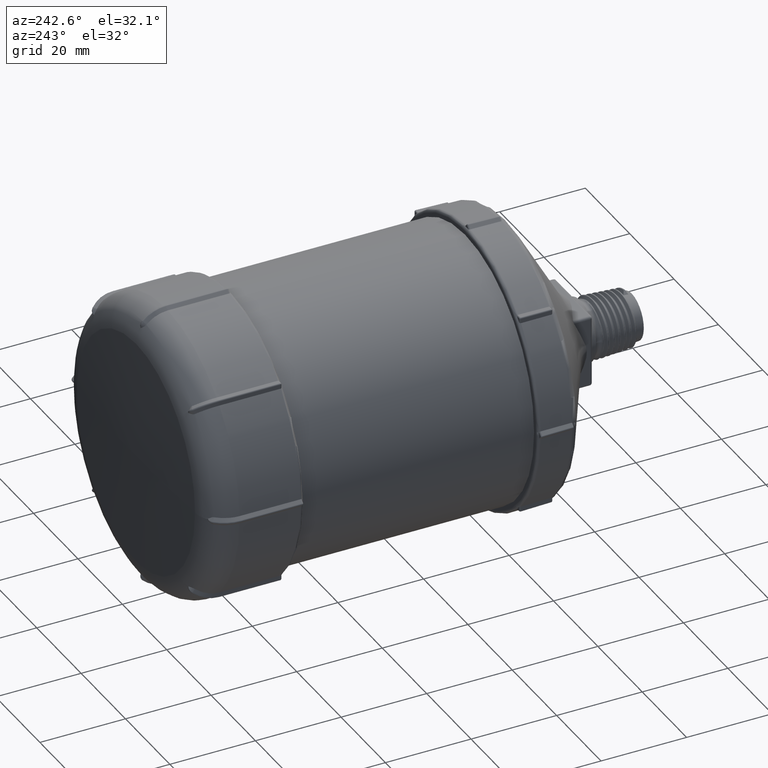
[diagram: clean part render]
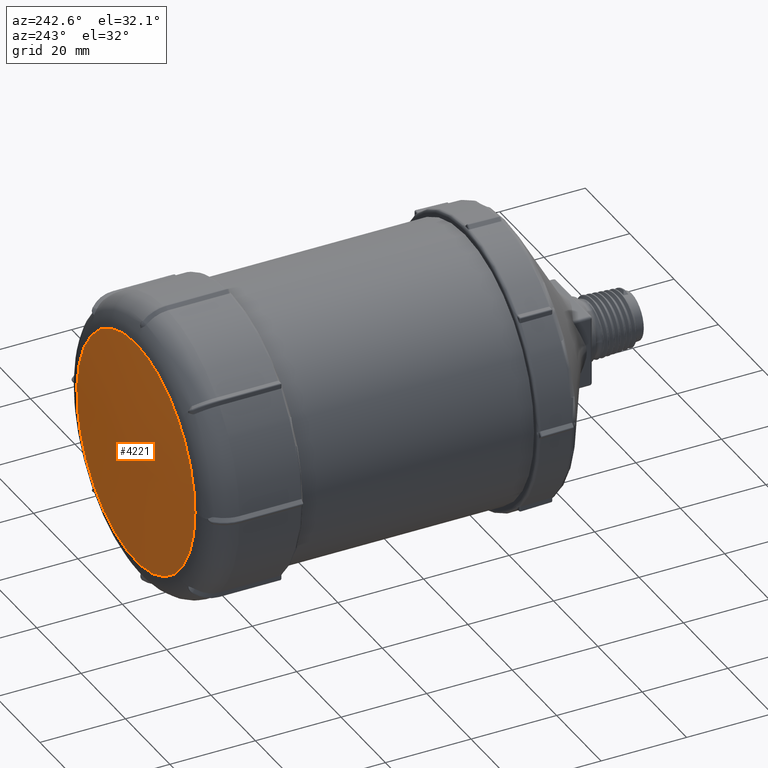
[diagram: same view with one face highlighted and labeled with its STEP entity id]
A machine part, auxiliary view. The second image highlights one B-rep face of the part: STEP entity #4221.
In plain terms, the highlighted spherical surface has radius 500 mm.
Its self-contained STEP definition (entity closure, byte-faithful):
#234=CIRCLE('',#4503,500.);
#235=CIRCLE('',#4504,26.6227180527383);
#236=CIRCLE('',#4505,26.6227180527383);
#457=SPHERICAL_SURFACE('',#4502,500.);
#492=FACE_OUTER_BOUND('',#753,.T.);
#753=EDGE_LOOP('',(#2649,#2650,#2651,#2652));
#1614=VERTEX_POINT('',#6331);
#1615=VERTEX_POINT('',#6332);
#1616=VERTEX_POINT('',#6334);
#2004=EDGE_CURVE('',#1614,#1615,#234,.T.);
#2005=EDGE_CURVE('',#1615,#1616,#235,.T.);
#2006=EDGE_CURVE('',#1616,#1615,#236,.T.);
#2649=ORIENTED_EDGE('',*,*,#2004,.T.);
#2650=ORIENTED_EDGE('',*,*,#2005,.T.);
#2651=ORIENTED_EDGE('',*,*,#2006,.T.);
#2652=ORIENTED_EDGE('',*,*,#2004,.F.);
#4221=ADVANCED_FACE('',(#492),#457,.T.);
#4502=AXIS2_PLACEMENT_3D('',#6330,#4989,#4990);
#4503=AXIS2_PLACEMENT_3D('',#6333,#4991,#4992);
#4504=AXIS2_PLACEMENT_3D('',#6335,#4993,#4994);
#4505=AXIS2_PLACEMENT_3D('',#6336,#4995,#4996);
#4989=DIRECTION('center_axis',(-1.52910017248592E-15,1.,1.08596977349049E-16));
#4990=DIRECTION('ref_axis',(1.,1.59161572810262E-15,-6.12323399573757E-17));
#4991=DIRECTION('center_axis',(1.83697019872111E-16,-1.08596977349049E-16,
1.));
#4992=DIRECTION('ref_axis',(-1.,-1.56319401867222E-15,1.83697019872111E-16));
#4993=DIRECTION('center_axis',(-1.59033251244329E-15,1.,1.08596977349049E-16));
#4994=DIRECTION('ref_axis',(1.,1.59033251244329E-15,-6.12323399573757E-17));
#4995=DIRECTION('center_axis',(-1.59033251244329E-15,1.,1.08596977349049E-16));
#4996=DIRECTION('ref_axis',(1.,1.59033251244329E-15,-6.12323399573757E-17));
#6330=CARTESIAN_POINT('Origin',(6.31019214343762E-13,-382.450500541659,
-6.6174303206804E-14));
#6331=CARTESIAN_POINT('',(-1.64147041877883E-13,117.549499458341,-1.18684568753292E-14));
#6332=CARTESIAN_POINT('',(-26.6227180527385,116.840227274795,-7.06232538034692E-15));
#6333=CARTESIAN_POINT('Origin',(6.31019214343762E-13,-382.450500541659,
-6.6174303206804E-14));
#6334=CARTESIAN_POINT('',(-1.61388891941824E-13,116.840227274795,26.6227180527383));
#6335=CARTESIAN_POINT('Origin',(-1.63019063264218E-13,116.840227274795,
-1.19528393475304E-14));
#6336=CARTESIAN_POINT('Origin',(-1.63019063264218E-13,116.840227274795,
-1.19528393475304E-14));